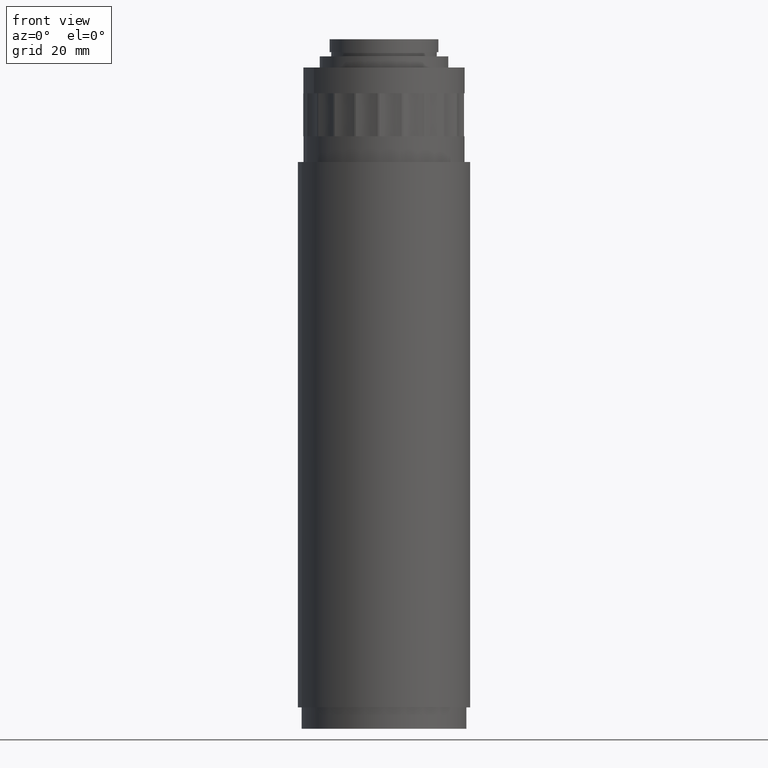
[diagram: clean part render]
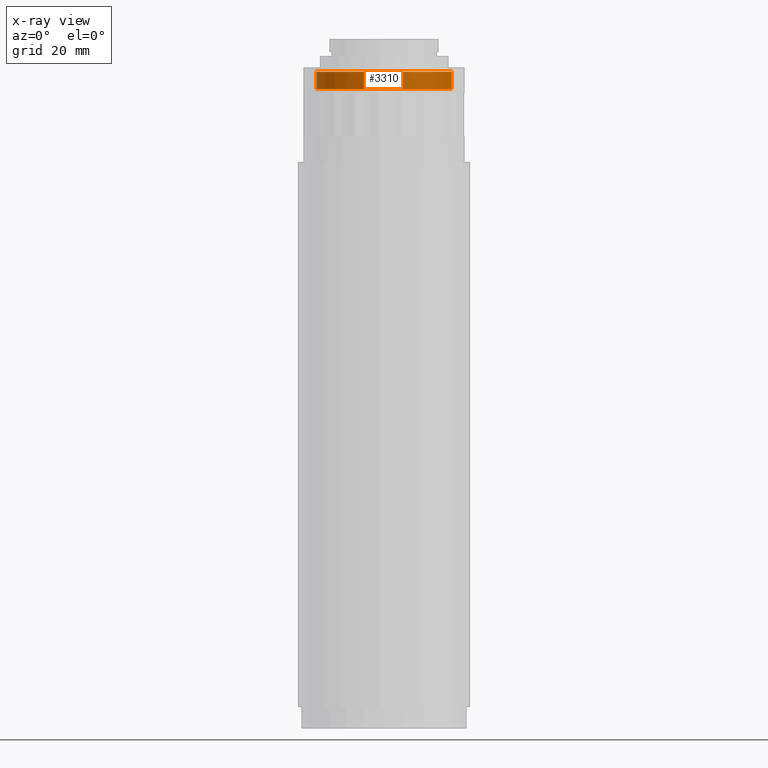
[diagram: x-ray — body ghosted, one internal face saturated and labeled with its STEP entity id]
A machine part, front view, then the same camera in x-ray: the body is ghosted and one INTERNAL B-rep face — a face not visible from any outside direction — is saturated and labeled: STEP entity #3310.
In plain terms, the highlighted cylindrical surface (bore or boss wall) has radius 15.8 mm, axis along (0, -0, -1).
Its self-contained STEP definition (entity closure, byte-faithful):
#73 = CIRCLE ( 'NONE', #2934, 15.80000000000000249 ) ;
#457 = CARTESIAN_POINT ( 'NONE',  ( 0.01183030213290326045, -0.01324913266420860158, 312.2883595891562436 ) ) ;
#547 = FACE_OUTER_BOUND ( 'NONE', #3125, .T. ) ;
#750 = CARTESIAN_POINT ( 'NONE',  ( -13.68936003003770985, -7.882009103691066443, 343.5586631449635320 ) ) ;
#953 = ORIENTED_EDGE ( 'NONE', *, *, #5010, .T. ) ;
#1080 = VERTEX_POINT ( 'NONE', #3076 ) ;
#1108 = EDGE_LOOP ( 'NONE', ( #4940 ) ) ;
#1113 = EDGE_CURVE ( 'NONE', #1080, #1080, #1229, .T. ) ;
#1229 = CIRCLE ( 'NONE', #3592, 15.80000000000000249 ) ;
#1487 = AXIS2_PLACEMENT_3D ( 'NONE', #457, #3572, #1643 ) ;
#1643 = DIRECTION ( 'NONE',  ( -0.8671639450740893373, -0.4980227829763833602, 0.000000000000000000 ) ) ;
#2061 = DIRECTION ( 'NONE',  ( -5.993364155279202502E-18, 1.043572600051914778E-17, 1.000000000000000000 ) ) ;
#2406 = DIRECTION ( 'NONE',  ( -0.8671639450740893373, -0.4980227829763833602, 0.000000000000000000 ) ) ;
#2459 = CARTESIAN_POINT ( 'NONE',  ( 0.01183030213290307310, -0.01324913266420827372, 343.5586631449635320 ) ) ;
#2916 = DIRECTION ( 'NONE',  ( -5.993364155279202502E-18, 1.043572600051914778E-17, 1.000000000000000000 ) ) ;
#2934 = AXIS2_PLACEMENT_3D ( 'NONE', #2459, #2916, #4103 ) ;
#3076 = CARTESIAN_POINT ( 'NONE',  ( -13.68936003003770985, -7.882009103691066443, 339.5586631449635320 ) ) ;
#3125 = EDGE_LOOP ( 'NONE', ( #953 ) ) ;
#3310 = ADVANCED_FACE ( 'NONE', ( #547, #4374 ), #4726, .F. ) ;
#3572 = DIRECTION ( 'NONE',  ( 5.993364155279202502E-18, -1.043572600051914778E-17, -1.000000000000000000 ) ) ;
#3592 = AXIS2_PLACEMENT_3D ( 'NONE', #4428, #2061, #2406 ) ;
#4103 = DIRECTION ( 'NONE',  ( -0.8671639450740893373, -0.4980227829763833602, 0.000000000000000000 ) ) ;
#4283 = VERTEX_POINT ( 'NONE', #750 ) ;
#4374 = FACE_OUTER_BOUND ( 'NONE', #1108, .T. ) ;
#4428 = CARTESIAN_POINT ( 'NONE',  ( 0.01183030213290309565, -0.01324913266420831709, 339.5586631449635320 ) ) ;
#4726 = CYLINDRICAL_SURFACE ( 'NONE', #1487, 15.80000000000000249 ) ;
#4940 = ORIENTED_EDGE ( 'NONE', *, *, #1113, .F. ) ;
#5010 = EDGE_CURVE ( 'NONE', #4283, #4283, #73, .T. ) ;